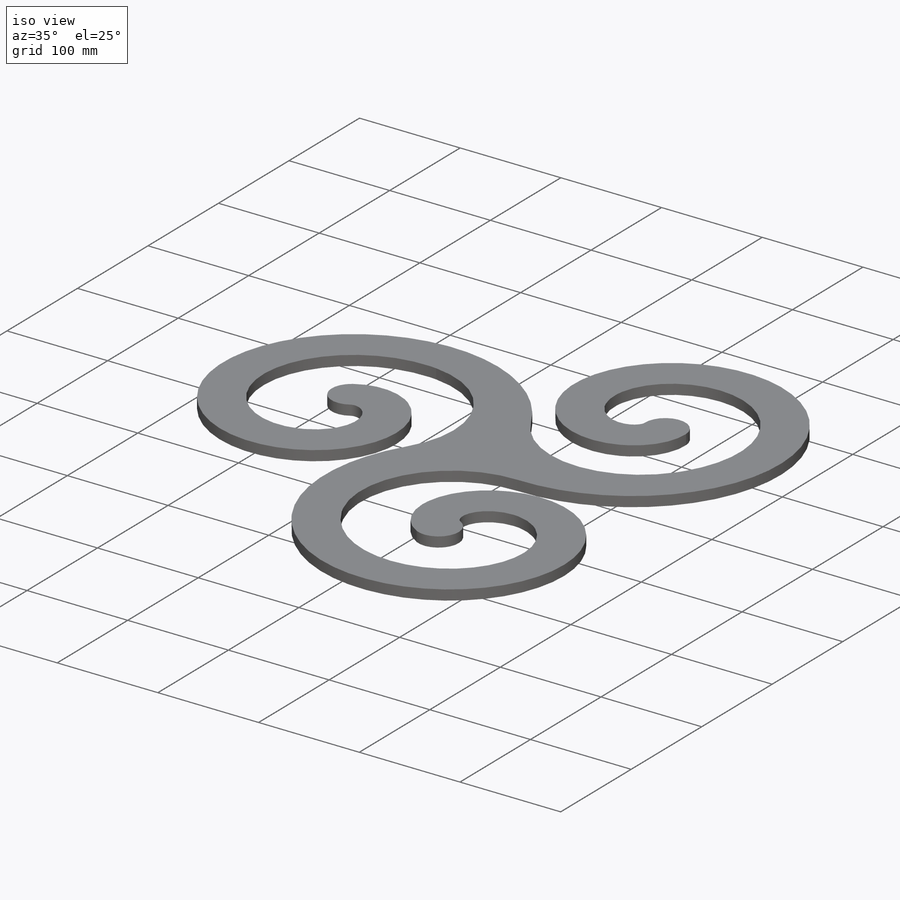
[diagram: iso view]
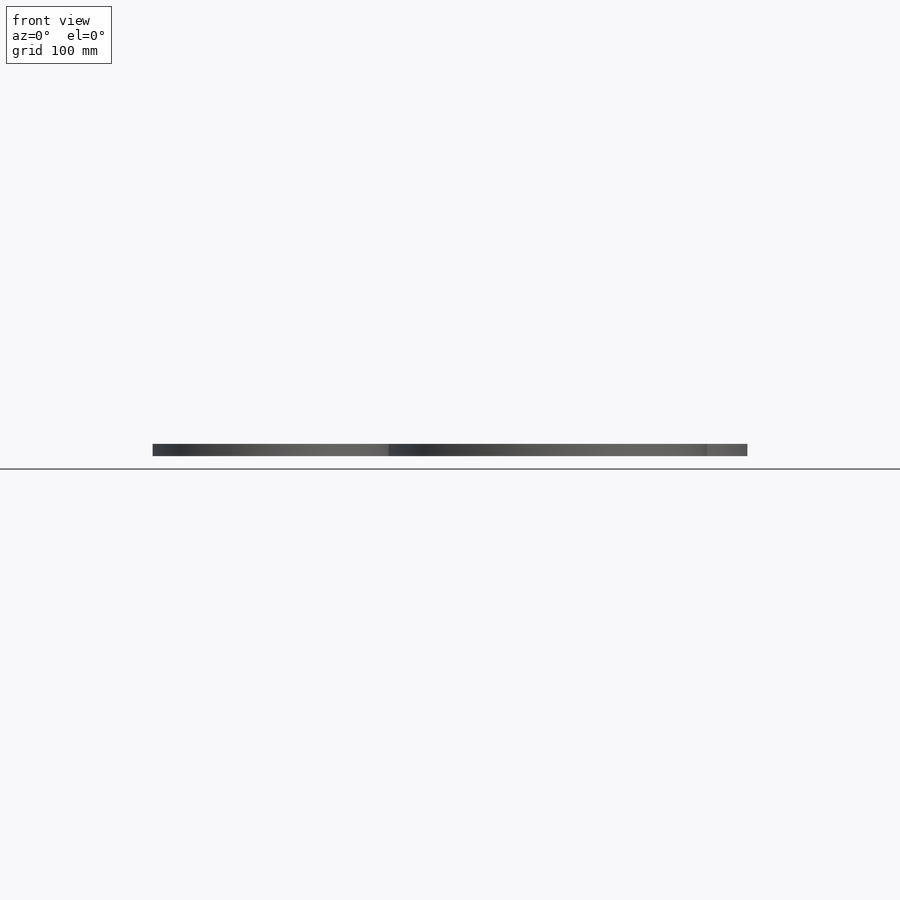
[diagram: front view]
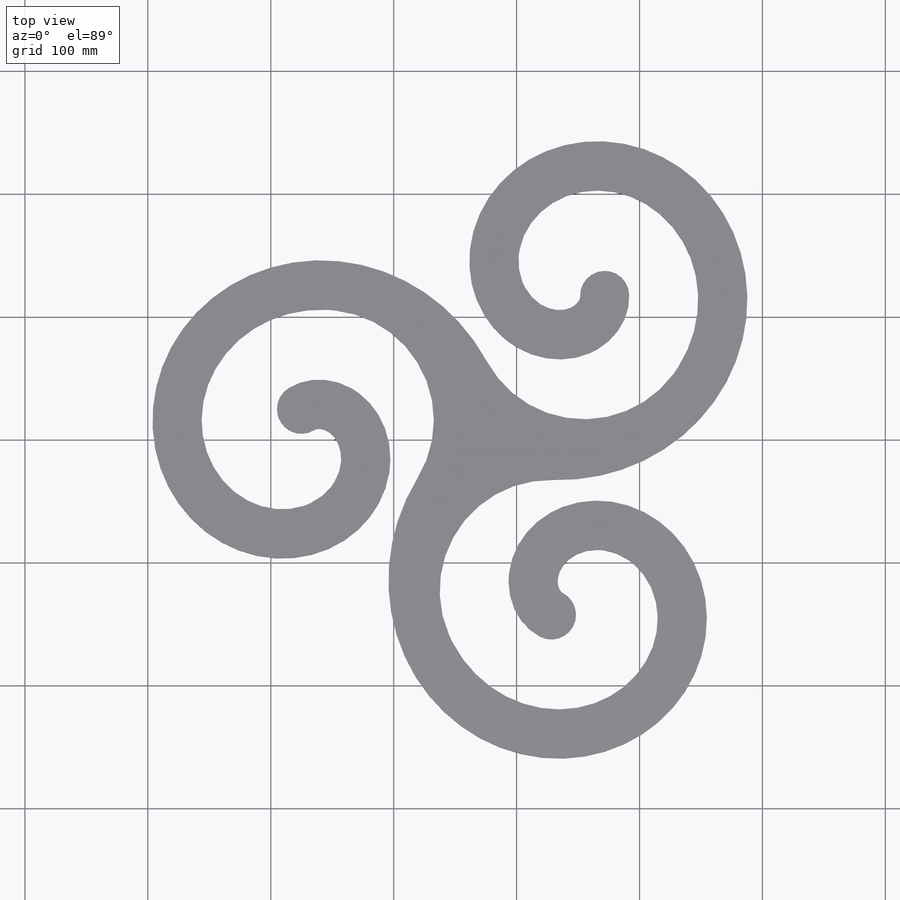
[diagram: top view]
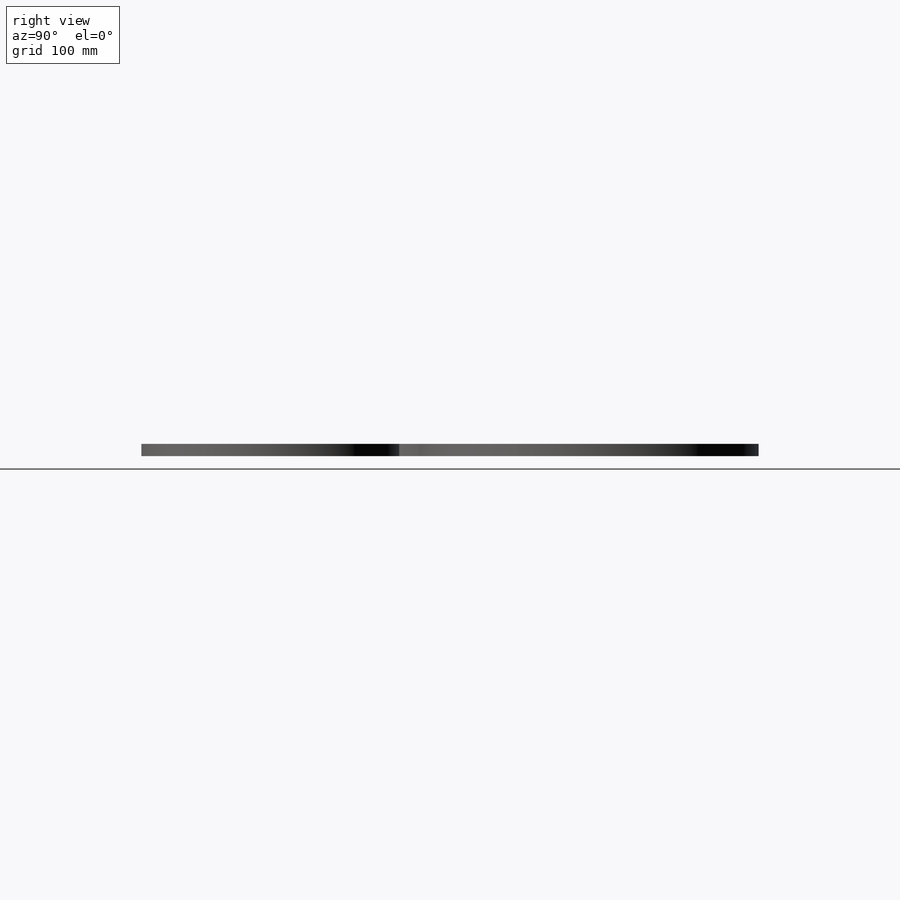
[diagram: right view]
SOLIDWORKS PART (.sldprt)
format: sldprt  version: not decoded by parser v0  size: 239,616 bytes
history: native  units: mm
features: plane x4, sketch x2, material x1, helix x1, extrude x1, pattern_circular x1, boolean_combine x1, fillet x1 (+10 scaffold rows collapsed)
feature tree (22):
  scaffold x10  (default folders/planes/origin — collapsed)
  material  "Material <nicht angegeben>"
  plane  "Ebene vorne"
  plane  "Ebene oben"
  plane  "Ebene rechts"
  sketch  "Skizze1"  dims[D1=50.0mm]
  helix  "Spirale/Helix1"  Pitch=100mm
  sketch  "Skizze2"  dims[D1=20.0mm D2=20.0mm]
  extrude  "Aufsatz-Linear austragen1"  Depth=10mm
  plane  "Ebene1"
  pattern_circular  "Kreismuster1"  Count=3  [1 undecoded]
  boolean_combine  "Kombinieren1"
  fillet  "Verrundung1"  Radius=90mm
decode coverage: 6 of 7 modeling features carry decoded parameters
note: 1 parameter value undecoded
note: suppression state not decoded; provenance and decode notes live in map.json
